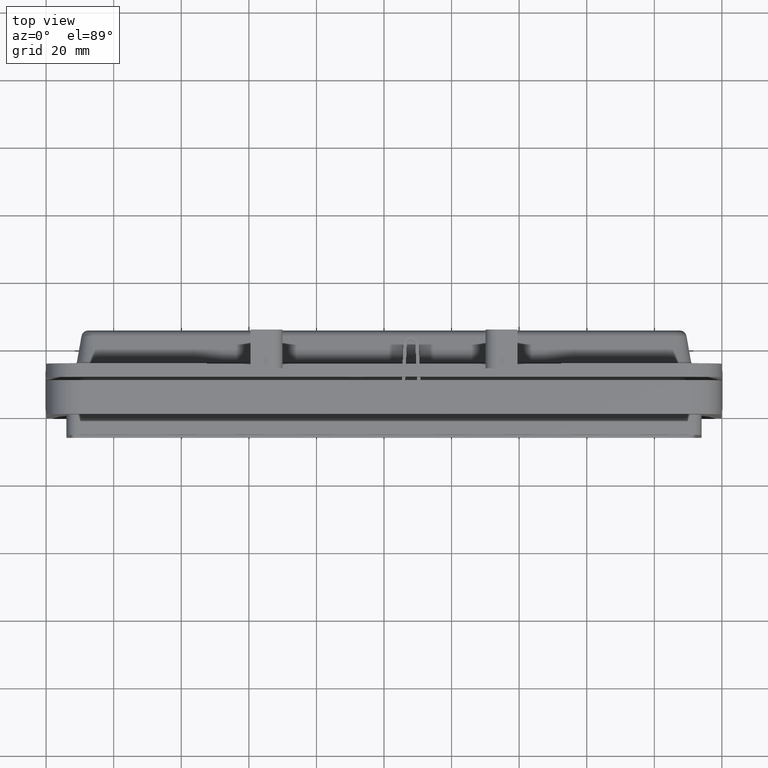
[diagram: clean part render]
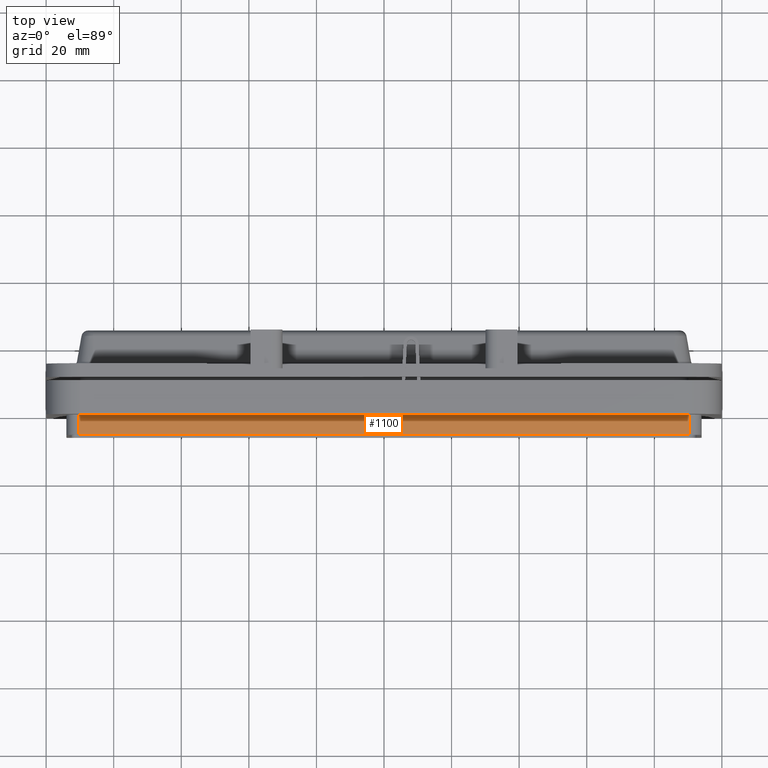
[diagram: same view with one face highlighted and labeled with its STEP entity id]
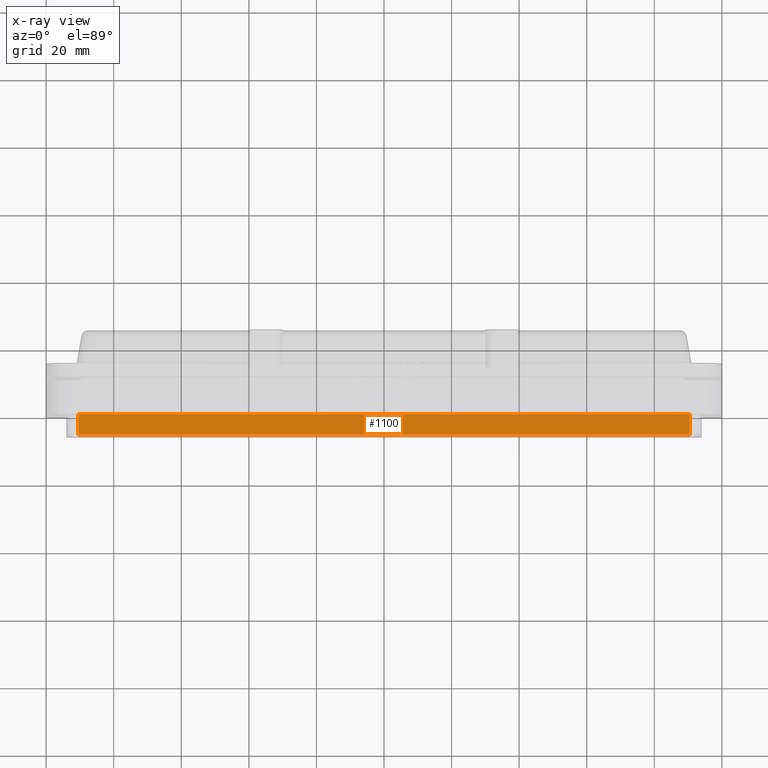
[diagram: x-ray of the same camera — body ghosted, the highlighted face saturated]
A machine part, top view. The second image highlights one B-rep face of the part: STEP entity #1100.
The next image is the same camera in x-ray: the body ghosted, the highlighted face saturated — about 0% of this face is hidden behind the body in this view.
In plain terms, the highlighted planar face has unit normal (0, 0, -1).
Its self-contained STEP definition (entity closure, byte-faithful):
#616 = VERTEX_POINT ( 'NONE', #1501 ) ;
#645 = VERTEX_POINT ( 'NONE', #1519 ) ;
#683 = EDGE_CURVE ( 'NONE', #645, #616, #1633, .T. ) ;
#926 = VERTEX_POINT ( 'NONE', #2401 ) ;
#952 = EDGE_CURVE ( 'NONE', #1110, #645, #2821, .T. ) ;
#975 = ORIENTED_EDGE ( 'NONE', *, *, #952, .T. ) ;
#1061 = EDGE_CURVE ( 'NONE', #926, #616, #3570, .T. ) ;
#1091 = EDGE_LOOP ( 'NONE', ( #1092, #1093, #1350, #975 ) ) ;
#1092 = ORIENTED_EDGE ( 'NONE', *, *, #683, .T. ) ;
#1093 = ORIENTED_EDGE ( 'NONE', *, *, #1061, .F. ) ;
#1100 = ADVANCED_FACE ( 'NONE', ( #3820 ), #3902, .F. ) ;
#1110 = VERTEX_POINT ( 'NONE', #3951 ) ;
#1126 = EDGE_CURVE ( 'NONE', #1110, #926, #4002, .T. ) ;
#1350 = ORIENTED_EDGE ( 'NONE', *, *, #1126, .F. ) ;
#1501 = CARTESIAN_POINT ( 'NONE',  ( -90.50000000000000000, 0.0000000000000000000, 26.49999999999996100 ) ) ;
#1519 = CARTESIAN_POINT ( 'NONE',  ( 90.50000000000001400, 0.0000000000000000000, 26.49999999999999600 ) ) ;
#1630 = DIRECTION ( 'NONE',  ( -1.000000000000000000, 0.0000000000000000000, -1.150092912249816900E-016 ) ) ;
#1631 = VECTOR ( 'NONE', #1630, 1000.000000000000000 ) ;
#1632 = CARTESIAN_POINT ( 'NONE',  ( 90.50000000000000000, 0.0000000000000000000, 26.50000000000000000 ) ) ;
#1633 = LINE ( 'NONE', #1632, #1631 ) ;
#2401 = CARTESIAN_POINT ( 'NONE',  ( -90.50000000000000000, -6.000000000000000000, 26.49999999999996100 ) ) ;
#2816 = DIRECTION ( 'NONE',  ( -0.0000000000000000000, 1.000000000000000000, -0.0000000000000000000 ) ) ;
#2817 = VECTOR ( 'NONE', #2816, 1000.000000000000000 ) ;
#2819 = CARTESIAN_POINT ( 'NONE',  ( 90.50000000000000000, -6.000000000000000000, 26.50000000000000000 ) ) ;
#2821 = LINE ( 'NONE', #2819, #2817 ) ;
#3566 = DIRECTION ( 'NONE',  ( -0.0000000000000000000, 1.000000000000000000, -0.0000000000000000000 ) ) ;
#3567 = VECTOR ( 'NONE', #3566, 1000.000000000000000 ) ;
#3568 = CARTESIAN_POINT ( 'NONE',  ( -90.50000000000000000, -6.000000000000000000, 26.49999999999996100 ) ) ;
#3570 = LINE ( 'NONE', #3568, #3567 ) ;
#3820 = FACE_OUTER_BOUND ( 'NONE', #1091, .T. ) ;
#3896 = DIRECTION ( 'NONE',  ( -1.000000000000000000, 0.0000000000000000000, -1.150092912249816900E-016 ) ) ;
#3898 = DIRECTION ( 'NONE',  ( 1.150092912249816900E-016, 0.0000000000000000000, -1.000000000000000000 ) ) ;
#3899 = CARTESIAN_POINT ( 'NONE',  ( 90.50000000000000000, -6.000000000000000000, 26.50000000000000000 ) ) ;
#3900 = AXIS2_PLACEMENT_3D ( 'NONE', #3899, #3898, #3896 ) ;
#3902 = PLANE ( 'NONE',  #3900 ) ;
#3951 = CARTESIAN_POINT ( 'NONE',  ( 90.50000000000000000, -6.000000000000000000, 26.50000000000000000 ) ) ;
#3998 = DIRECTION ( 'NONE',  ( -1.000000000000000000, 0.0000000000000000000, -1.150092912249816900E-016 ) ) ;
#3999 = VECTOR ( 'NONE', #3998, 1000.000000000000000 ) ;
#4000 = CARTESIAN_POINT ( 'NONE',  ( 90.50000000000000000, -6.000000000000000000, 26.50000000000000000 ) ) ;
#4002 = LINE ( 'NONE', #4000, #3999 ) ;